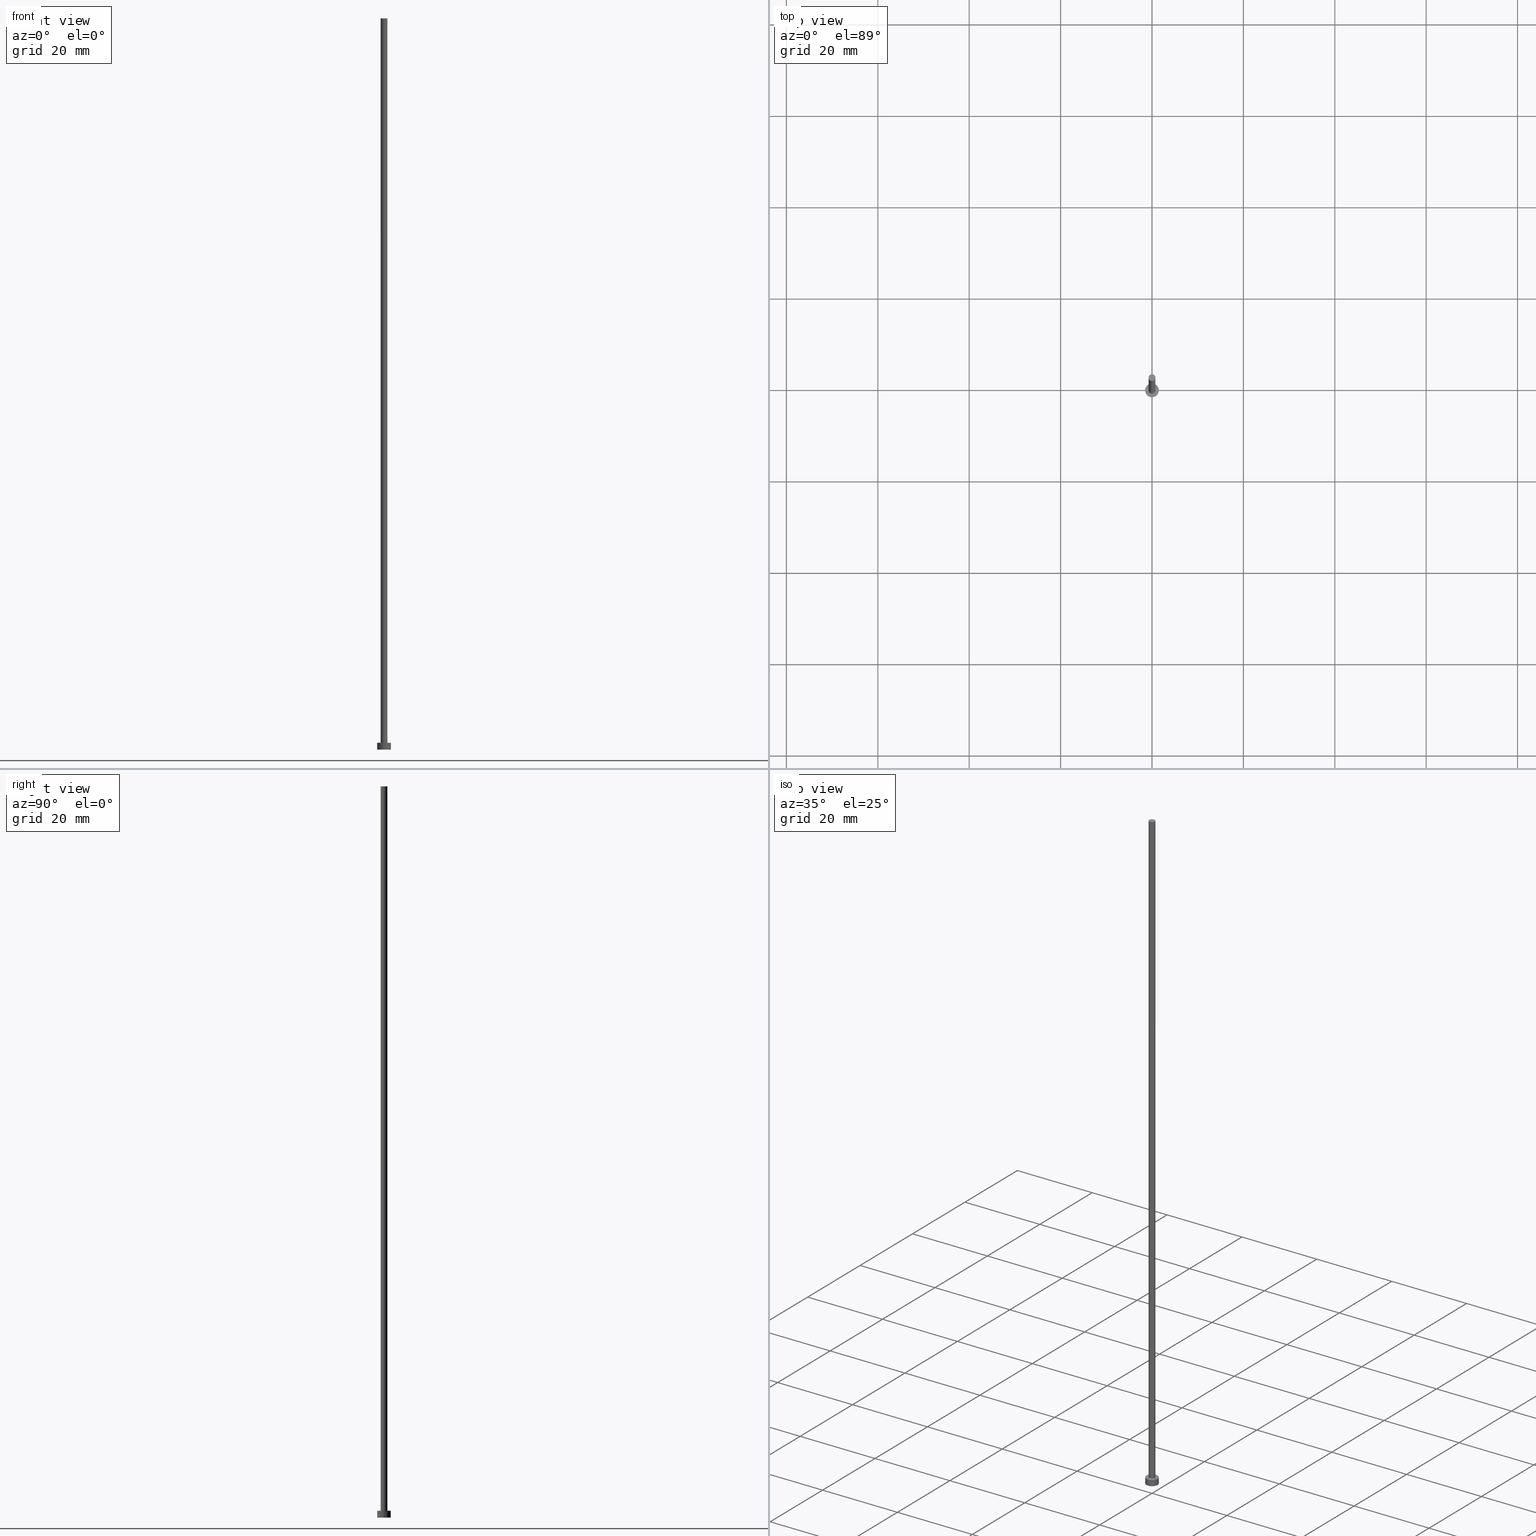
[diagram: canonical four-view strip — front | top / right | iso, engineering-drawing reading convention]
A machine part, canonical four-view strip (front | top / right | iso — engineering-drawing reading convention). The complete STEP part file that produces these views, byte-faithful:
ISO-10303-21;
HEADER;
FILE_DESCRIPTION (( 'STEP AP203' ),
    '1' );
FILE_NAME ('ee8a.STEP',
    '2023-02-13T17:18:11',
    ( '' ),
    ( '' ),
    'SwSTEP 2.0',
    'SolidWorks 2019',
    '' );
FILE_SCHEMA (( 'CONFIG_CONTROL_DESIGN' ));
ENDSEC;

DATA;
#1 = EDGE_LOOP ( 'NONE', ( #150, #152, #93, #189 ) ) ;
#2 = AXIS2_PLACEMENT_3D ( 'NONE', #221, #118, #52 ) ;
#3 = ORIENTED_EDGE ( 'NONE', *, *, #123, .F. ) ;
#4 = APPROVAL_ROLE ( '' ) ;
#5 = SHAPE_DEFINITION_REPRESENTATION ( #108, #199 ) ;
#6 = LOCAL_TIME ( 18, 18, 11.00000000000000000, #87 ) ;
#7 = EDGE_CURVE ( 'NONE', #156, #120, #170, .T. ) ;
#8 = CARTESIAN_POINT ( 'NONE',  ( 0.000000000000000000, 0.000000000000000000, 0.000000000000000000 ) ) ;
#9 = APPLICATION_CONTEXT ( 'configuration controlled 3d designs of mechanical parts and assemblies' ) ;
#10 = CC_DESIGN_APPROVAL ( #193, ( #205 ) ) ;
#11 = DIRECTION ( 'NONE',  ( 1.000000000000000000, 0.000000000000000000, 0.000000000000000000 ) ) ;
#12 = DIRECTION ( 'NONE',  ( 0.000000000000000000, 0.000000000000000000, 1.000000000000000000 ) ) ;
#13 = CARTESIAN_POINT ( 'NONE',  ( -1.500000000000000222, 0.000000000000000000, 1.500000000000000000 ) ) ;
#14 = ORIENTED_EDGE ( 'NONE', *, *, #172, .T. ) ;
#15 = CARTESIAN_POINT ( 'NONE',  ( 1.500000000000000222, 1.836970198721030181E-16, 1.500000000000000000 ) ) ;
#16 = VERTEX_POINT ( 'NONE', #190 ) ;
#17 = ORIENTED_EDGE ( 'NONE', *, *, #123, .T. ) ;
#18 = CIRCLE ( 'NONE', #2, 0.7500000000000001110 ) ;
#19 = DIRECTION ( 'NONE',  ( -1.000000000000000000, 0.000000000000000000, 0.000000000000000000 ) ) ;
#20 = EDGE_LOOP ( 'NONE', ( #234, #14, #253, #109 ) ) ;
#21 = CARTESIAN_POINT ( 'NONE',  ( -0.7500000000000001110, 0.000000000000000000, 160.0000000000000000 ) ) ;
#22 = CARTESIAN_POINT ( 'NONE',  ( 0.000000000000000000, 0.000000000000000000, 1.500000000000000000 ) ) ;
#23 = ORIENTED_EDGE ( 'NONE', *, *, #105, .F. ) ;
#24 = AXIS2_PLACEMENT_3D ( 'NONE', #8, #185, #11 ) ;
#25 = ORIENTED_EDGE ( 'NONE', *, *, #235, .T. ) ;
#26 = COORDINATED_UNIVERSAL_TIME_OFFSET ( 1, 0, .AHEAD. ) ;
#27 = COORDINATED_UNIVERSAL_TIME_OFFSET ( 1, 0, .AHEAD. ) ;
#28 = VECTOR ( 'NONE', #66, 1000.000000000000000 ) ;
#29 = CC_DESIGN_SECURITY_CLASSIFICATION ( #95, ( #205 ) ) ;
#30 = PERSON_AND_ORGANIZATION_ROLE ( 'classification_officer' ) ;
#31 = EDGE_LOOP ( 'NONE', ( #148, #174 ) ) ;
#32 = CARTESIAN_POINT ( 'NONE',  ( 0.000000000000000000, 0.000000000000000000, 1.500000000000000000 ) ) ;
#33 = AXIS2_PLACEMENT_3D ( 'NONE', #164, #69, #124 ) ;
#34 = PRODUCT_RELATED_PRODUCT_CATEGORY ( 'detail', '', ( #143 ) ) ;
#35 = CLOSED_SHELL ( 'NONE', ( #122, #37, #241, #55, #194, #73, #147 ) ) ;
#36 = DIRECTION ( 'NONE',  ( 0.000000000000000000, 0.000000000000000000, 1.000000000000000000 ) ) ;
#37 = ADVANCED_FACE ( 'NONE', ( #60 ), #169, .T. ) ;
#38 = DIRECTION ( 'NONE',  ( 0.000000000000000000, 0.000000000000000000, 1.000000000000000000 ) ) ;
#39 =( NAMED_UNIT ( * ) PLANE_ANGLE_UNIT ( ) SI_UNIT ( $, .RADIAN. ) );
#40 = FACE_BOUND ( 'NONE', #110, .T. ) ;
#41 = CC_DESIGN_APPROVAL ( #188, ( #95 ) ) ;
#42 = DIRECTION ( 'NONE',  ( 1.000000000000000000, 0.000000000000000000, 0.000000000000000000 ) ) ;
#43 = DIRECTION ( 'NONE',  ( -0.000000000000000000, -0.000000000000000000, -1.000000000000000000 ) ) ;
#44 = EDGE_LOOP ( 'NONE', ( #92, #126, #165, #153 ) ) ;
#45 = AXIS2_PLACEMENT_3D ( 'NONE', #68, #91, #51 ) ;
#46 = CYLINDRICAL_SURFACE ( 'NONE', #125, 0.7500000000000001110 ) ;
#47 = CC_DESIGN_DATE_AND_TIME_ASSIGNMENT ( #136, #114, ( #95 ) ) ;
#48 = APPROVAL_DATE_TIME ( #112, #249 ) ;
#49 = AXIS2_PLACEMENT_3D ( 'NONE', #255, #77, #211 ) ;
#50 = DIRECTION ( 'NONE',  ( -0.000000000000000000, -0.000000000000000000, -1.000000000000000000 ) ) ;
#51 = DIRECTION ( 'NONE',  ( 1.000000000000000000, 0.000000000000000000, 0.000000000000000000 ) ) ;
#52 = DIRECTION ( 'NONE',  ( 1.000000000000000000, 0.000000000000000000, 0.000000000000000000 ) ) ;
#53 = ORIENTED_EDGE ( 'NONE', *, *, #181, .F. ) ;
#54 = VECTOR ( 'NONE', #50, 1000.000000000000000 ) ;
#55 = ADVANCED_FACE ( 'NONE', ( #40, #192 ), #96, .T. ) ;
#56 = CC_DESIGN_PERSON_AND_ORGANIZATION_ASSIGNMENT ( #62, #65, ( #205 ) ) ;
#57 = CARTESIAN_POINT ( 'NONE',  ( 0.000000000000000000, 0.000000000000000000, 0.000000000000000000 ) ) ;
#58 = VERTEX_POINT ( 'NONE', #135 ) ;
#59 = APPROVAL_PERSON_ORGANIZATION ( #200, #188, #4 ) ;
#60 = FACE_OUTER_BOUND ( 'NONE', #20, .T. ) ;
#61 = UNCERTAINTY_MEASURE_WITH_UNIT (LENGTH_MEASURE( 1.000000000000000082E-05 ), #149, 'distance_accuracy_value', 'NONE');
#62 = PERSON_AND_ORGANIZATION ( #97, #238 ) ;
#63 = APPROVAL_ROLE ( '' ) ;
#64 = APPROVAL_PERSON_ORGANIZATION ( #81, #249, #154 ) ;
#65 = PERSON_AND_ORGANIZATION_ROLE ( 'creator' ) ;
#66 = DIRECTION ( 'NONE',  ( -0.000000000000000000, -0.000000000000000000, -1.000000000000000000 ) ) ;
#67 = FACE_OUTER_BOUND ( 'NONE', #1, .T. ) ;
#68 = CARTESIAN_POINT ( 'NONE',  ( 0.000000000000000000, 0.000000000000000000, 1.500000000000000000 ) ) ;
#69 = DIRECTION ( 'NONE',  ( 0.000000000000000000, 0.000000000000000000, 1.000000000000000000 ) ) ;
#70 = CARTESIAN_POINT ( 'NONE',  ( 0.000000000000000000, 0.000000000000000000, 160.0000000000000000 ) ) ;
#71 = EDGE_LOOP ( 'NONE', ( #208, #3, #25, #167 ) ) ;
#72 = CYLINDRICAL_SURFACE ( 'NONE', #107, 1.500000000000000222 ) ;
#73 = ADVANCED_FACE ( 'NONE', ( #216 ), #46, .T. ) ;
#74 = CARTESIAN_POINT ( 'NONE',  ( 0.000000000000000000, 0.000000000000000000, 0.000000000000000000 ) ) ;
#75 = ORIENTED_EDGE ( 'NONE', *, *, #206, .F. ) ;
#76 = APPLICATION_PROTOCOL_DEFINITION ( 'international standard', 'config_control_design', 1994, #180 ) ;
#77 = DIRECTION ( 'NONE',  ( -0.000000000000000000, -0.000000000000000000, -1.000000000000000000 ) ) ;
#78 = CC_DESIGN_DATE_AND_TIME_ASSIGNMENT ( #201, #218, ( #138 ) ) ;
#79 = DIRECTION ( 'NONE',  ( 0.000000000000000000, 0.000000000000000000, 1.000000000000000000 ) ) ;
#80 = AXIS2_PLACEMENT_3D ( 'NONE', #70, #104, #121 ) ;
#81 = PERSON_AND_ORGANIZATION ( #97, #238 ) ;
#82 = VERTEX_POINT ( 'NONE', #222 ) ;
#83 = CALENDAR_DATE ( 2023, 13, 2 ) ;
#84 = CALENDAR_DATE ( 2023, 13, 2 ) ;
#85 = SECURITY_CLASSIFICATION_LEVEL ( 'unclassified' ) ;
#86 = AXIS2_PLACEMENT_3D ( 'NONE', #57, #232, #42 ) ;
#87 = COORDINATED_UNIVERSAL_TIME_OFFSET ( 1, 0, .AHEAD. ) ;
#88 = CC_DESIGN_PERSON_AND_ORGANIZATION_ASSIGNMENT ( #173, #171, ( #143 ) ) ;
#89 = PERSON_AND_ORGANIZATION ( #97, #238 ) ;
#90 = LINE ( 'NONE', #13, #54 ) ;
#91 = DIRECTION ( 'NONE',  ( 0.000000000000000000, 0.000000000000000000, 1.000000000000000000 ) ) ;
#92 = ORIENTED_EDGE ( 'NONE', *, *, #172, .F. ) ;
#93 = ORIENTED_EDGE ( 'NONE', *, *, #102, .T. ) ;
#94 = CARTESIAN_POINT ( 'NONE',  ( 0.000000000000000000, 0.000000000000000000, 1.500000000000000000 ) ) ;
#95 = SECURITY_CLASSIFICATION ( '', '', #85 ) ;
#96 = PLANE ( 'NONE',  #132 ) ;
#97 = PERSON ( 'NEUR�EN�', 'NEUR�EN�', 'NEUR�EN�', ('NEUR�EN�'), ('NEUR�EN�'), ('NEUR�EN�') ) ;
#98 = MECHANICAL_CONTEXT ( 'NONE', #9, 'mechanical' ) ;
#99 = MANIFOLD_SOLID_BREP ( 'P�idat vysunut�m3', #35 ) ;
#100 = APPROVAL_PERSON_ORGANIZATION ( #89, #193, #63 ) ;
#101 = COORDINATED_UNIVERSAL_TIME_OFFSET ( 1, 0, .AHEAD. ) ;
#102 = EDGE_CURVE ( 'NONE', #145, #82, #163, .T. ) ;
#103 = CYLINDRICAL_SURFACE ( 'NONE', #116, 0.7500000000000001110 ) ;
#104 = DIRECTION ( 'NONE',  ( 0.000000000000000000, 0.000000000000000000, 1.000000000000000000 ) ) ;
#105 = EDGE_CURVE ( 'NONE', #16, #58, #237, .T. ) ;
#106 = DIRECTION ( 'NONE',  ( 1.000000000000000000, 0.000000000000000000, 0.000000000000000000 ) ) ;
#107 = AXIS2_PLACEMENT_3D ( 'NONE', #94, #151, #19 ) ;
#108 = PRODUCT_DEFINITION_SHAPE ( 'NONE', 'NONE',  #138 ) ;
#109 = ORIENTED_EDGE ( 'NONE', *, *, #161, .F. ) ;
#110 = EDGE_LOOP ( 'NONE', ( #53, #252 ) ) ;
#111 = EDGE_LOOP ( 'NONE', ( #75, #23 ) ) ;
#112 = DATE_AND_TIME ( #134, #137 ) ;
#113 = CARTESIAN_POINT ( 'NONE',  ( 0.000000000000000000, 0.000000000000000000, 160.0000000000000000 ) ) ;
#114 = DATE_TIME_ROLE ( 'classification_date' ) ;
#115 = CARTESIAN_POINT ( 'NONE',  ( 0.7500000000000001110, 9.184850993605150903E-17, 1.500000000000000000 ) ) ;
#116 = AXIS2_PLACEMENT_3D ( 'NONE', #142, #144, #141 ) ;
#117 = EDGE_CURVE ( 'NONE', #230, #145, #223, .T. ) ;
#118 = DIRECTION ( 'NONE',  ( 0.000000000000000000, 0.000000000000000000, 1.000000000000000000 ) ) ;
#119 = LOCAL_TIME ( 18, 18, 11.00000000000000000, #101 ) ;
#120 = VERTEX_POINT ( 'NONE', #15 ) ;
#121 = DIRECTION ( 'NONE',  ( 1.000000000000000000, 0.000000000000000000, -0.000000000000000000 ) ) ;
#122 = ADVANCED_FACE ( 'NONE', ( #67 ), #103, .T. ) ;
#123 = EDGE_CURVE ( 'NONE', #248, #230, #18, .T. ) ;
#124 = DIRECTION ( 'NONE',  ( 1.000000000000000000, 0.000000000000000000, 0.000000000000000000 ) ) ;
#125 = AXIS2_PLACEMENT_3D ( 'NONE', #113, #197, #227 ) ;
#126 = ORIENTED_EDGE ( 'NONE', *, *, #7, .F. ) ;
#127 = AXIS2_PLACEMENT_3D ( 'NONE', #204, #38, #166 ) ;
#128 = EDGE_LOOP ( 'NONE', ( #17, #224 ) ) ;
#129 = EDGE_CURVE ( 'NONE', #120, #156, #160, .T. ) ;
#130 = CARTESIAN_POINT ( 'NONE',  ( 0.000000000000000000, 0.000000000000000000, 1.500000000000000000 ) ) ;
#131 = DIRECTION ( 'NONE',  ( 0.000000000000000000, 0.000000000000000000, 1.000000000000000000 ) ) ;
#132 = AXIS2_PLACEMENT_3D ( 'NONE', #22, #79, #243 ) ;
#133 = DIRECTION ( 'NONE',  ( 0.000000000000000000, 0.000000000000000000, 1.000000000000000000 ) ) ;
#134 = CALENDAR_DATE ( 2023, 13, 2 ) ;
#135 = CARTESIAN_POINT ( 'NONE',  ( -1.500000000000000222, 0.000000000000000000, 0.000000000000000000 ) ) ;
#136 = DATE_AND_TIME ( #179, #244 ) ;
#137 = LOCAL_TIME ( 18, 18, 11.00000000000000000, #233 ) ;
#138 = PRODUCT_DEFINITION ( 'NEZN�M�', '', #205, #215 ) ;
#139 = APPROVAL_DATE_TIME ( #155, #188 ) ;
#140 = CC_DESIGN_PERSON_AND_ORGANIZATION_ASSIGNMENT ( #198, #240, ( #138 ) ) ;
#141 = DIRECTION ( 'NONE',  ( -1.000000000000000000, 0.000000000000000000, 0.000000000000000000 ) ) ;
#142 = CARTESIAN_POINT ( 'NONE',  ( 0.000000000000000000, 0.000000000000000000, 160.0000000000000000 ) ) ;
#143 = PRODUCT ( 'ee8a', 'ee8a', '', ( #98 ) ) ;
#144 = DIRECTION ( 'NONE',  ( -0.000000000000000000, -0.000000000000000000, -1.000000000000000000 ) ) ;
#145 = VERTEX_POINT ( 'NONE', #115 ) ;
#146 = FACE_OUTER_BOUND ( 'NONE', #111, .T. ) ;
#147 = ADVANCED_FACE ( 'NONE', ( #250 ), #183, .T. ) ;
#148 = ORIENTED_EDGE ( 'NONE', *, *, #7, .T. ) ;
#149 =( LENGTH_UNIT ( ) NAMED_UNIT ( * ) SI_UNIT ( .MILLI., .METRE. ) );
#150 = ORIENTED_EDGE ( 'NONE', *, *, #184, .F. ) ;
#151 = DIRECTION ( 'NONE',  ( -0.000000000000000000, -0.000000000000000000, -1.000000000000000000 ) ) ;
#152 = ORIENTED_EDGE ( 'NONE', *, *, #117, .T. ) ;
#153 = ORIENTED_EDGE ( 'NONE', *, *, #206, .T. ) ;
#154 = APPROVAL_ROLE ( '' ) ;
#155 = DATE_AND_TIME ( #83, #119 ) ;
#156 = VERTEX_POINT ( 'NONE', #187 ) ;
#157 = DATE_AND_TIME ( #242, #212 ) ;
#158 = PERSON_AND_ORGANIZATION ( #97, #238 ) ;
#159 = APPROVAL_STATUS ( 'not_yet_approved' ) ;
#160 = CIRCLE ( 'NONE', #186, 1.500000000000000222 ) ;
#161 = EDGE_CURVE ( 'NONE', #156, #58, #90, .T. ) ;
#162 = LINE ( 'NONE', #247, #196 ) ;
#163 = CIRCLE ( 'NONE', #209, 0.7500000000000001110 ) ;
#164 = CARTESIAN_POINT ( 'NONE',  ( 0.000000000000000000, 0.000000000000000000, 160.0000000000000000 ) ) ;
#165 = ORIENTED_EDGE ( 'NONE', *, *, #161, .T. ) ;
#166 = DIRECTION ( 'NONE',  ( 1.000000000000000000, 0.000000000000000000, -0.000000000000000000 ) ) ;
#167 = ORIENTED_EDGE ( 'NONE', *, *, #181, .T. ) ;
#168 =( GEOMETRIC_REPRESENTATION_CONTEXT ( 3 ) GLOBAL_UNCERTAINTY_ASSIGNED_CONTEXT ( ( #61 ) ) GLOBAL_UNIT_ASSIGNED_CONTEXT ( ( #149, #39, #254 ) ) REPRESENTATION_CONTEXT ( 'NONE', 'WORKASPACE' ) );
#169 = CYLINDRICAL_SURFACE ( 'NONE', #49, 1.500000000000000222 ) ;
#170 = CIRCLE ( 'NONE', #239, 1.500000000000000222 ) ;
#171 = PERSON_AND_ORGANIZATION_ROLE ( 'design_owner' ) ;
#172 = EDGE_CURVE ( 'NONE', #120, #16, #162, .T. ) ;
#173 = PERSON_AND_ORGANIZATION ( #97, #238 ) ;
#174 = ORIENTED_EDGE ( 'NONE', *, *, #129, .T. ) ;
#175 = APPROVAL_STATUS ( 'not_yet_approved' ) ;
#176 = AXIS2_PLACEMENT_3D ( 'NONE', #74, #133, #214 ) ;
#177 = APPROVAL_DATE_TIME ( #157, #193 ) ;
#178 = CC_DESIGN_APPROVAL ( #249, ( #138 ) ) ;
#179 = CALENDAR_DATE ( 2023, 13, 2 ) ;
#180 = APPLICATION_CONTEXT ( 'configuration controlled 3d designs of mechanical parts and assemblies' ) ;
#181 = EDGE_CURVE ( 'NONE', #82, #145, #228, .T. ) ;
#182 = DIRECTION ( 'NONE',  ( 1.000000000000000000, 0.000000000000000000, 0.000000000000000000 ) ) ;
#183 = PLANE ( 'NONE',  #80 ) ;
#184 = EDGE_CURVE ( 'NONE', #230, #248, #217, .T. ) ;
#185 = DIRECTION ( 'NONE',  ( 0.000000000000000000, 0.000000000000000000, 1.000000000000000000 ) ) ;
#186 = AXIS2_PLACEMENT_3D ( 'NONE', #32, #12, #106 ) ;
#187 = CARTESIAN_POINT ( 'NONE',  ( -1.500000000000000222, 0.000000000000000000, 1.500000000000000000 ) ) ;
#188 = APPROVAL ( #175, 'NEUR�EN�' ) ;
#189 = ORIENTED_EDGE ( 'NONE', *, *, #235, .F. ) ;
#190 = CARTESIAN_POINT ( 'NONE',  ( 1.500000000000000222, 1.836970198721030181E-16, 0.000000000000000000 ) ) ;
#191 = LINE ( 'NONE', #207, #225 ) ;
#192 = FACE_OUTER_BOUND ( 'NONE', #31, .T. ) ;
#193 = APPROVAL ( #159, 'NEUR�EN�' ) ;
#194 = ADVANCED_FACE ( 'NONE', ( #146 ), #226, .F. ) ;
#195 = DIRECTION ( 'NONE',  ( 1.000000000000000000, 0.000000000000000000, 0.000000000000000000 ) ) ;
#196 = VECTOR ( 'NONE', #246, 1000.000000000000000 ) ;
#197 = DIRECTION ( 'NONE',  ( -0.000000000000000000, -0.000000000000000000, -1.000000000000000000 ) ) ;
#198 = PERSON_AND_ORGANIZATION ( #97, #238 ) ;
#199 = ADVANCED_BREP_SHAPE_REPRESENTATION ( 'ee8a', ( #99, #86 ), #168 ) ;
#200 = PERSON_AND_ORGANIZATION ( #97, #238 ) ;
#201 = DATE_AND_TIME ( #84, #6 ) ;
#202 = CIRCLE ( 'NONE', #176, 1.500000000000000222 ) ;
#203 = CARTESIAN_POINT ( 'NONE',  ( 0.000000000000000000, 0.000000000000000000, 1.500000000000000000 ) ) ;
#204 = CARTESIAN_POINT ( 'NONE',  ( 0.000000000000000000, 0.000000000000000000, 0.000000000000000000 ) ) ;
#205 = PRODUCT_DEFINITION_FORMATION_WITH_SPECIFIED_SOURCE ( 'LIBOVOLN�', '', #143, .NOT_KNOWN. ) ;
#206 = EDGE_CURVE ( 'NONE', #58, #16, #202, .T. ) ;
#207 = CARTESIAN_POINT ( 'NONE',  ( -0.7500000000000001110, 0.000000000000000000, 160.0000000000000000 ) ) ;
#208 = ORIENTED_EDGE ( 'NONE', *, *, #117, .F. ) ;
#209 = AXIS2_PLACEMENT_3D ( 'NONE', #203, #36, #182 ) ;
#210 = CARTESIAN_POINT ( 'NONE',  ( 0.7500000000000001110, 9.184850993605150903E-17, 160.0000000000000000 ) ) ;
#211 = DIRECTION ( 'NONE',  ( -1.000000000000000000, 0.000000000000000000, 0.000000000000000000 ) ) ;
#212 = LOCAL_TIME ( 18, 18, 11.00000000000000000, #27 ) ;
#213 = CC_DESIGN_PERSON_AND_ORGANIZATION_ASSIGNMENT ( #220, #30, ( #95 ) ) ;
#214 = DIRECTION ( 'NONE',  ( 1.000000000000000000, 0.000000000000000000, 0.000000000000000000 ) ) ;
#215 = DESIGN_CONTEXT ( 'detailed design', #180, 'design' ) ;
#216 = FACE_OUTER_BOUND ( 'NONE', #71, .T. ) ;
#217 = CIRCLE ( 'NONE', #33, 0.7500000000000001110 ) ;
#218 = DATE_TIME_ROLE ( 'creation_date' ) ;
#219 = CC_DESIGN_PERSON_AND_ORGANIZATION_ASSIGNMENT ( #158, #236, ( #205 ) ) ;
#220 = PERSON_AND_ORGANIZATION ( #97, #238 ) ;
#221 = CARTESIAN_POINT ( 'NONE',  ( 0.000000000000000000, 0.000000000000000000, 160.0000000000000000 ) ) ;
#222 = CARTESIAN_POINT ( 'NONE',  ( -0.7500000000000001110, 0.000000000000000000, 1.500000000000000000 ) ) ;
#223 = LINE ( 'NONE', #245, #28 ) ;
#224 = ORIENTED_EDGE ( 'NONE', *, *, #184, .T. ) ;
#225 = VECTOR ( 'NONE', #43, 1000.000000000000000 ) ;
#226 = PLANE ( 'NONE',  #127 ) ;
#227 = DIRECTION ( 'NONE',  ( -1.000000000000000000, 0.000000000000000000, 0.000000000000000000 ) ) ;
#228 = CIRCLE ( 'NONE', #45, 0.7500000000000001110 ) ;
#229 = APPLICATION_PROTOCOL_DEFINITION ( 'international standard', 'config_control_design', 1994, #9 ) ;
#230 = VERTEX_POINT ( 'NONE', #210 ) ;
#231 = APPROVAL_STATUS ( 'not_yet_approved' ) ;
#232 = DIRECTION ( 'NONE',  ( 0.000000000000000000, 0.000000000000000000, 1.000000000000000000 ) ) ;
#233 = COORDINATED_UNIVERSAL_TIME_OFFSET ( 1, 0, .AHEAD. ) ;
#234 = ORIENTED_EDGE ( 'NONE', *, *, #129, .F. ) ;
#235 = EDGE_CURVE ( 'NONE', #248, #82, #191, .T. ) ;
#236 = PERSON_AND_ORGANIZATION_ROLE ( 'design_supplier' ) ;
#237 = CIRCLE ( 'NONE', #24, 1.500000000000000222 ) ;
#238 = ORGANIZATION ( 'NEUR�EN�', 'NEUR�EN�', '' ) ;
#239 = AXIS2_PLACEMENT_3D ( 'NONE', #130, #131, #195 ) ;
#240 = PERSON_AND_ORGANIZATION_ROLE ( 'creator' ) ;
#241 = ADVANCED_FACE ( 'NONE', ( #251 ), #72, .T. ) ;
#242 = CALENDAR_DATE ( 2023, 13, 2 ) ;
#243 = DIRECTION ( 'NONE',  ( 1.000000000000000000, 0.000000000000000000, -0.000000000000000000 ) ) ;
#244 = LOCAL_TIME ( 18, 18, 11.00000000000000000, #26 ) ;
#245 = CARTESIAN_POINT ( 'NONE',  ( 0.7500000000000001110, 9.184850993605150903E-17, 160.0000000000000000 ) ) ;
#246 = DIRECTION ( 'NONE',  ( -0.000000000000000000, -0.000000000000000000, -1.000000000000000000 ) ) ;
#247 = CARTESIAN_POINT ( 'NONE',  ( 1.500000000000000222, 1.836970198721030181E-16, 1.500000000000000000 ) ) ;
#248 = VERTEX_POINT ( 'NONE', #21 ) ;
#249 = APPROVAL ( #231, 'NEUR�EN�' ) ;
#250 = FACE_OUTER_BOUND ( 'NONE', #128, .T. ) ;
#251 = FACE_OUTER_BOUND ( 'NONE', #44, .T. ) ;
#252 = ORIENTED_EDGE ( 'NONE', *, *, #102, .F. ) ;
#253 = ORIENTED_EDGE ( 'NONE', *, *, #105, .T. ) ;
#254 =( NAMED_UNIT ( * ) SI_UNIT ( $, .STERADIAN. ) SOLID_ANGLE_UNIT ( ) );
#255 = CARTESIAN_POINT ( 'NONE',  ( 0.000000000000000000, 0.000000000000000000, 1.500000000000000000 ) ) ;
ENDSEC;
END-ISO-10303-21;
